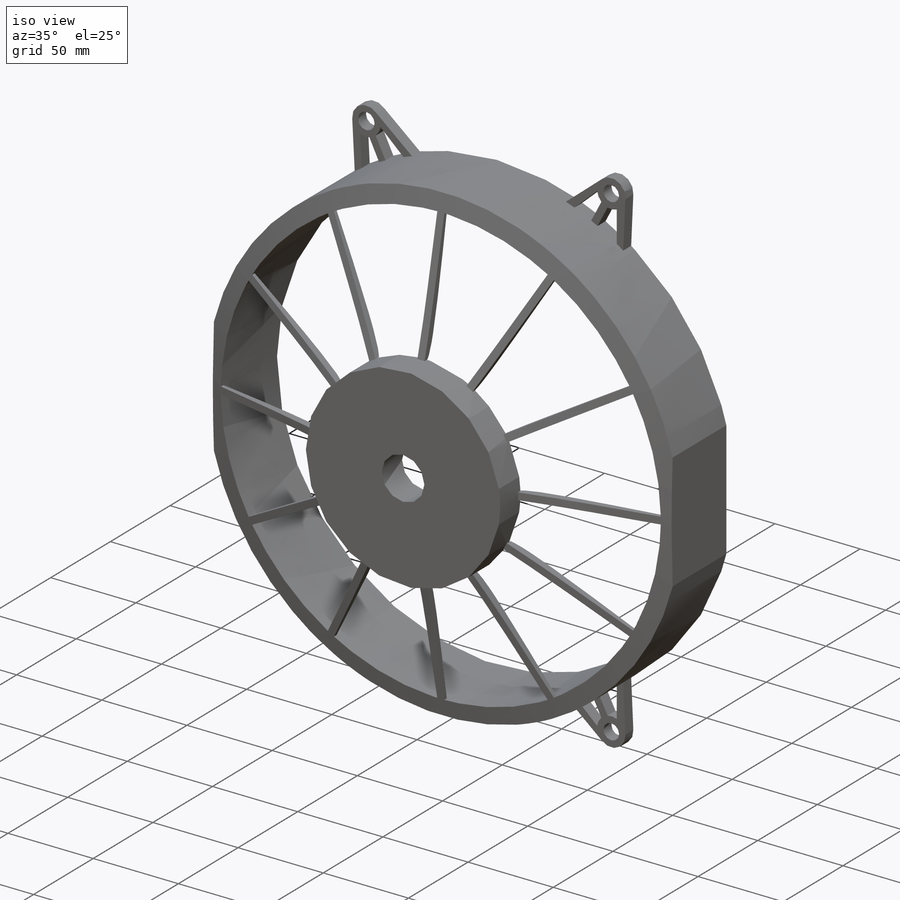
[diagram: iso view]
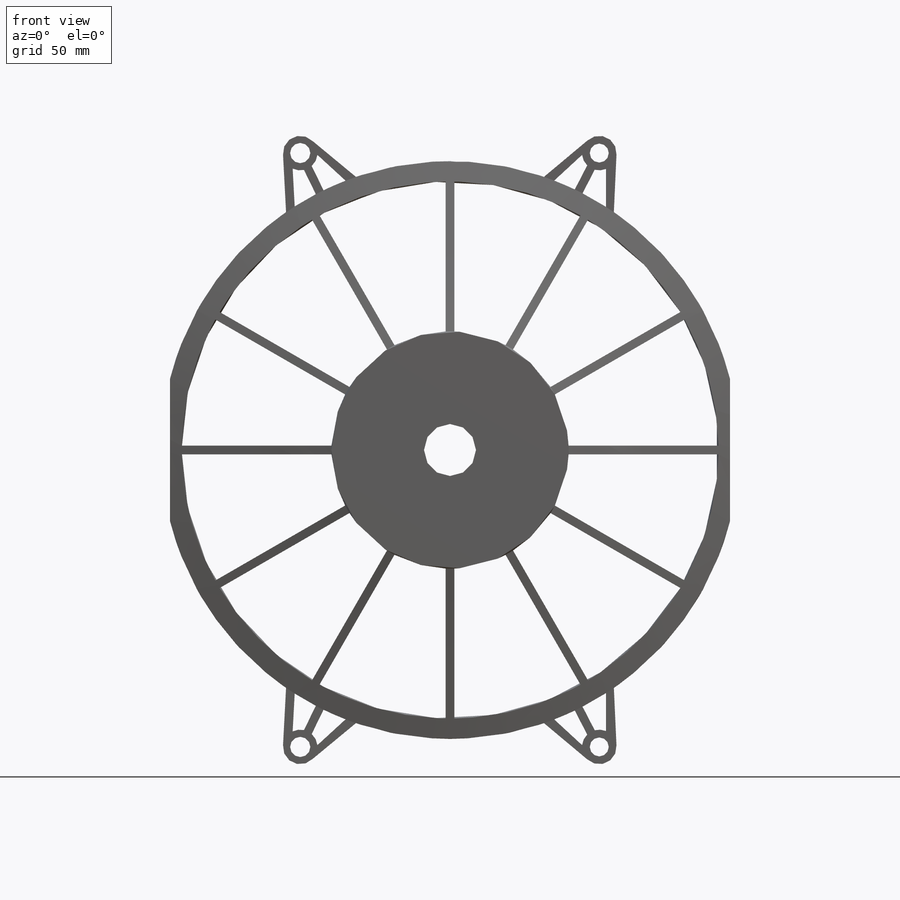
[diagram: front view]
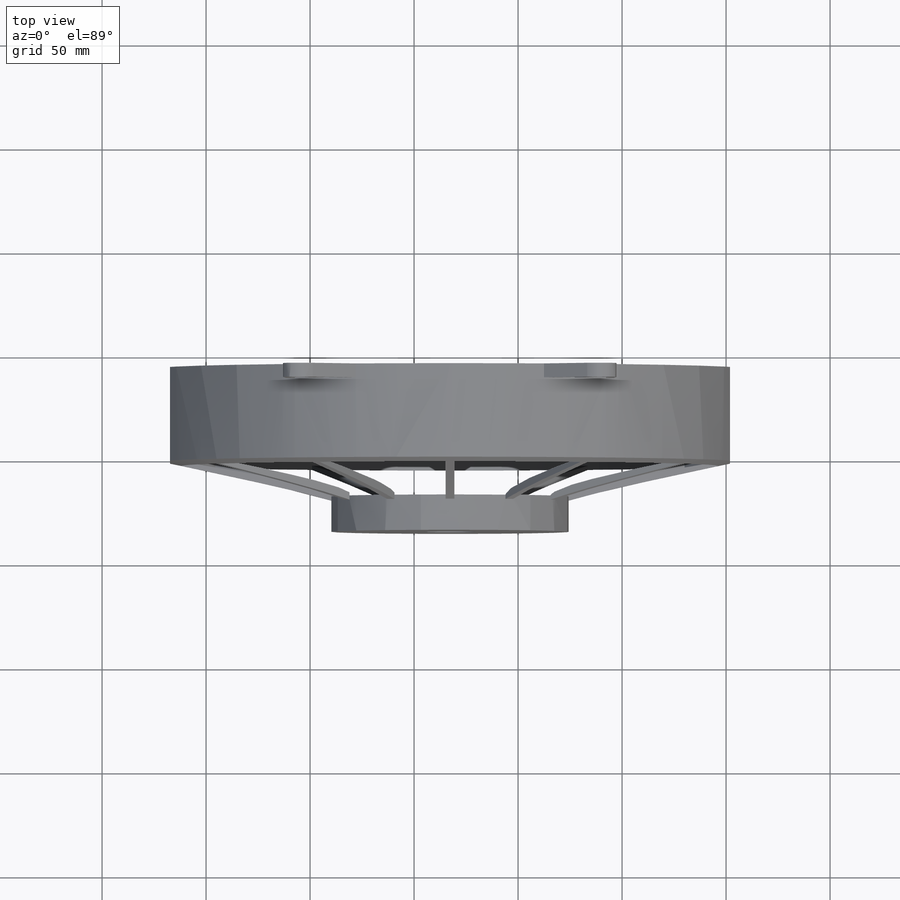
[diagram: top view]
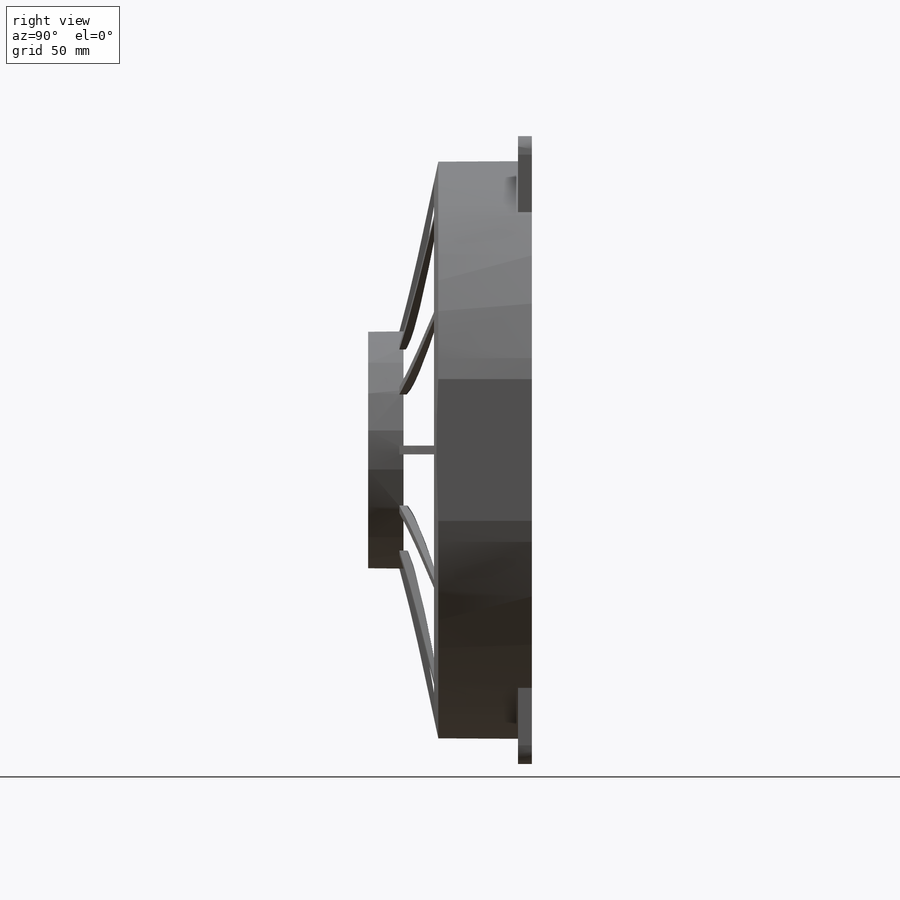
[diagram: right view]
SOLIDWORKS PART (.sldprt)
format: sldprt  version: not decoded by parser v0  size: 805,888 bytes
history: native  units: mm
features: sketch x11, cut_extrude x5, extrude x3, material x1 (+11 scaffold rows collapsed)
feature tree (31):
  scaffold x11  (default folders/planes/origin — collapsed)
  material  "Material <not specified>"
  sketch  "Sketch1"  dims[c1.D1=2.6mm c1.D2=2.6mm c1.D3=2.6mm c1.D4=2.6mm c2.D1=5.0mm]
  extrude  "Boss-Extrude3"  Depth=54mm
  sketch  "Sketch4"  dims[D1=~58.135554mm]
  extrude  "Boss-Extrude4"  Depth=22.5mm
  sketch  "Sketch5"
  sketch  "Sketch6"  dims[D1=137.0mm]
  extrude  "Boss-Extrude5"  Depth=18mm
  sketch  "Sketch7"  dims[c1.D1=2.5mm c1.D2=2.5mm c2.D1=12.0]
  cut_extrude  "Cut-Extrude3"  [1 undecoded]
  sketch  "Sketch8"
  cut_extrude  "Cut-Extrude4"  Depth=54mm
  sketch  "Sketch10"
  cut_extrude  "Cut-Extrude5"  Depth=20.09mm
  sketch  "Sketch11"
  sketch  "Sketch12"
  sketch  "Sketch14"
  cut_extrude  "Cut-Extrude6"  Depth=46mm
  sketch  "Sketch15"  dims[D1=25.0mm]
  cut_extrude  "Cut-Extrude7"  [1 undecoded]
decode coverage: 11 of 19 modeling features carry decoded parameters
note: ~ marks probable driven/reference dimensions
note: 2 parameter values undecoded
note: suppression state not decoded; provenance and decode notes live in map.json
